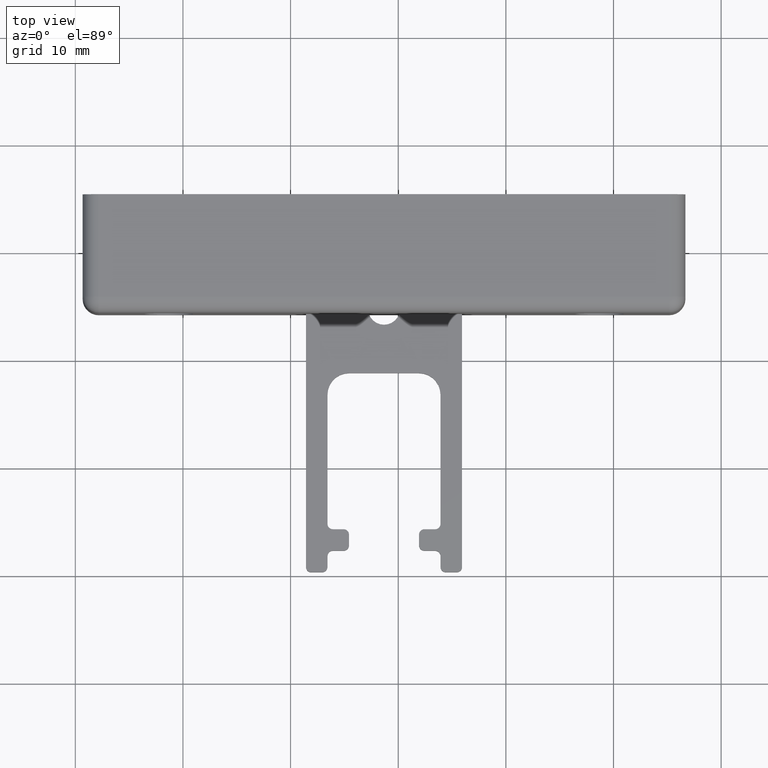
[diagram: clean part render]
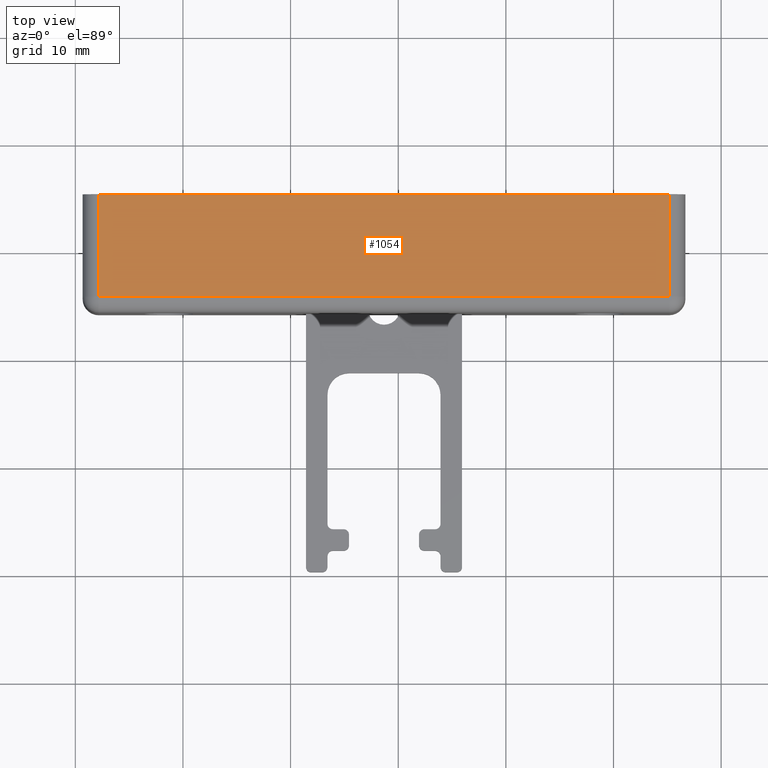
[diagram: same view with one face highlighted and labeled with its STEP entity id]
A machine part, top view. The second image highlights one B-rep face of the part: STEP entity #1054.
In plain terms, the highlighted planar face has unit normal (0, 0, 1).
Its self-contained STEP definition (entity closure, byte-faithful):
#32=PLANE('',#1133);
#70=LINE('',#1613,#172);
#73=LINE('',#1620,#175);
#74=LINE('',#1625,#176);
#77=LINE('',#1630,#179);
#172=VECTOR('',#1282,53.);
#175=VECTOR('',#1289,9.5);
#176=VECTOR('',#1294,9.50000000000001);
#179=VECTOR('',#1301,53.);
#304=FACE_OUTER_BOUND('',#364,.T.);
#364=EDGE_LOOP('',(#773,#774,#775,#776));
#470=VERTEX_POINT('',#1565);
#473=VERTEX_POINT('',#1572);
#485=VERTEX_POINT('',#1616);
#488=VERTEX_POINT('',#1623);
#593=EDGE_CURVE('',#470,#473,#70,.T.);
#597=EDGE_CURVE('',#473,#485,#73,.T.);
#599=EDGE_CURVE('',#488,#470,#74,.T.);
#602=EDGE_CURVE('',#488,#485,#77,.T.);
#773=ORIENTED_EDGE('',*,*,#597,.F.);
#774=ORIENTED_EDGE('',*,*,#593,.F.);
#775=ORIENTED_EDGE('',*,*,#599,.F.);
#776=ORIENTED_EDGE('',*,*,#602,.T.);
#1054=ADVANCED_FACE('',(#304),#32,.T.);
#1133=AXIS2_PLACEMENT_3D('',#1629,#1299,#1300);
#1282=DIRECTION('',(-1.,0.,0.));
#1289=DIRECTION('',(-3.06161699786839E-16,1.,0.));
#1294=DIRECTION('',(-1.61486985400023E-15,-1.,0.));
#1299=DIRECTION('center_axis',(0.,0.,1.));
#1300=DIRECTION('ref_axis',(1.,0.,0.));
#1301=DIRECTION('',(-1.,-1.58603289232165E-16,0.));
#1565=CARTESIAN_POINT('',(54.5,1.5,16.));
#1572=CARTESIAN_POINT('',(1.5,1.5,16.));
#1613=CARTESIAN_POINT('',(14.,1.5,16.));
#1616=CARTESIAN_POINT('',(1.49999999999999,11.,16.));
#1620=CARTESIAN_POINT('',(1.5,8.24999999999999,16.));
#1623=CARTESIAN_POINT('',(54.5,11.,16.));
#1625=CARTESIAN_POINT('',(54.5,2.74999999999998,16.));
#1629=CARTESIAN_POINT('Origin',(28.,5.5,16.));
#1630=CARTESIAN_POINT('',(56.,11.,16.));